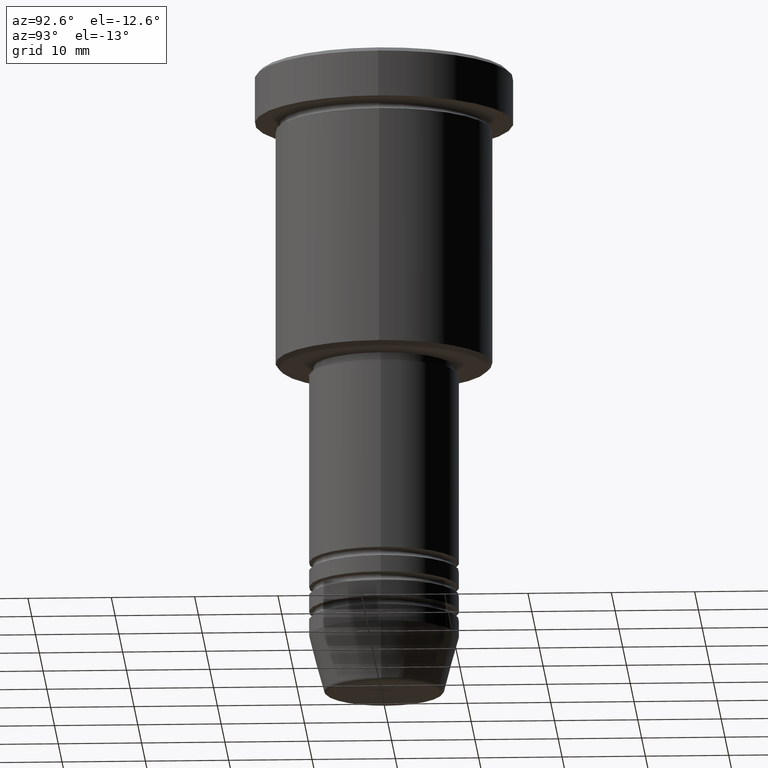
[diagram: clean part render]
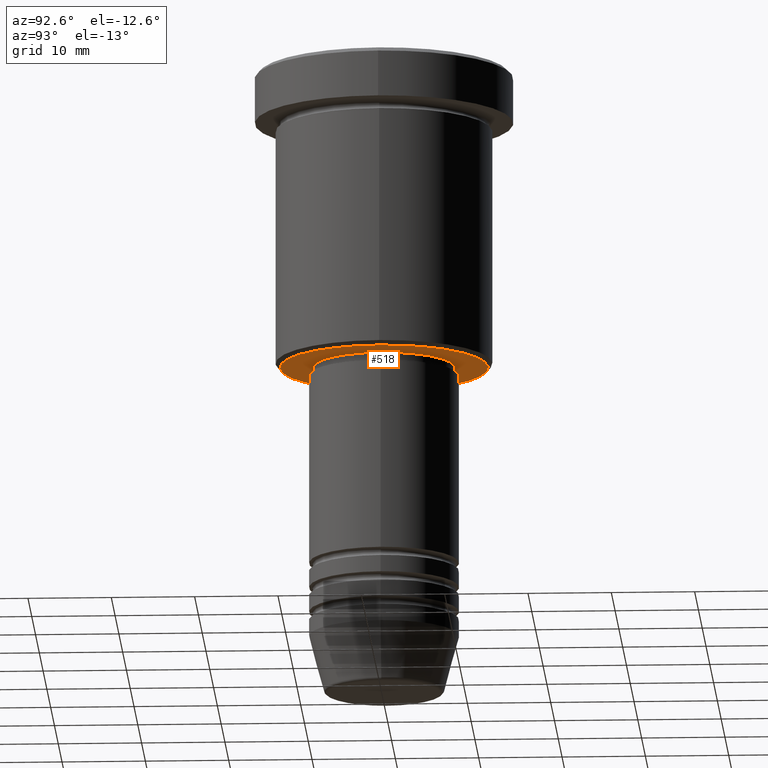
[diagram: same view with one face highlighted and labeled with its STEP entity id]
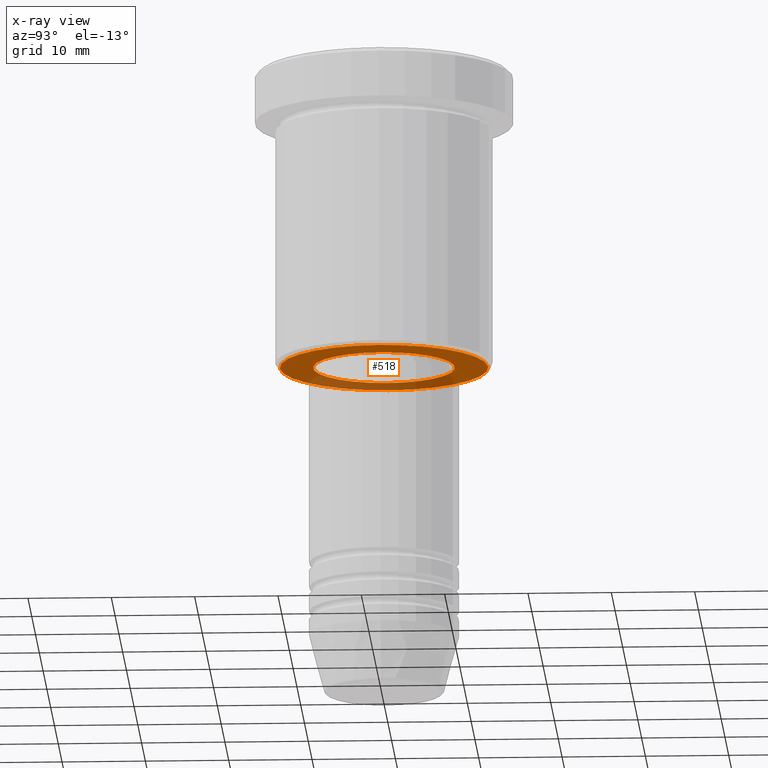
[diagram: x-ray of the same camera — body ghosted, the highlighted face saturated]
A machine part, auxiliary view. The second image highlights one B-rep face of the part: STEP entity #518.
The next image is the same camera in x-ray: the body ghosted, the highlighted face saturated — about 30% of this face is hidden behind the body in this view.
In plain terms, the highlighted planar face has unit normal (0, 0, -1).
Its self-contained STEP definition (entity closure, byte-faithful):
#16 = VERTEX_POINT ( 'NONE', #379 ) ;
#20 = EDGE_CURVE ( 'NONE', #750, #16, #87, .T. ) ;
#22 = DIRECTION ( 'NONE',  ( 0.000000000000000000, 0.000000000000000000, -1.000000000000000000 ) ) ;
#73 = CARTESIAN_POINT ( 'NONE',  ( 12.49999999999999112, 0.000000000000000000, -36.00000000000000711 ) ) ;
#87 = CIRCLE ( 'NONE', #1169, 12.49999999999999112 ) ;
#120 = ORIENTED_EDGE ( 'NONE', *, *, #169, .T. ) ;
#133 = VERTEX_POINT ( 'NONE', #847 ) ;
#169 = EDGE_CURVE ( 'NONE', #432, #133, #302, .T. ) ;
#191 = CARTESIAN_POINT ( 'NONE',  ( 0.000000000000000000, 0.000000000000000000, -36.00000000000000711 ) ) ;
#218 = FACE_BOUND ( 'NONE', #1034, .T. ) ;
#265 = CARTESIAN_POINT ( 'NONE',  ( 0.000000000000000000, 0.000000000000000000, -36.00000000000000711 ) ) ;
#289 = CIRCLE ( 'NONE', #594, 8.499999999999998224 ) ;
#295 = DIRECTION ( 'NONE',  ( -1.000000000000000000, 0.000000000000000000, -0.000000000000000000 ) ) ;
#302 = CIRCLE ( 'NONE', #1021, 8.499999999999998224 ) ;
#353 = DIRECTION ( 'NONE',  ( -1.000000000000000000, 0.000000000000000000, 0.000000000000000000 ) ) ;
#379 = CARTESIAN_POINT ( 'NONE',  ( -12.49999999999999112, 1.561424668912874519E-15, -36.00000000000000711 ) ) ;
#388 = EDGE_LOOP ( 'NONE', ( #892, #409 ) ) ;
#389 = CARTESIAN_POINT ( 'NONE',  ( 8.499999999999998224, 0.000000000000000000, -36.00000000000000711 ) ) ;
#409 = ORIENTED_EDGE ( 'NONE', *, *, #959, .T. ) ;
#432 = VERTEX_POINT ( 'NONE', #389 ) ;
#480 = DIRECTION ( 'NONE',  ( -1.000000000000000000, 0.000000000000000000, 0.000000000000000000 ) ) ;
#518 = ADVANCED_FACE ( 'NONE', ( #1031, #218 ), #843, .T. ) ;
#534 = DIRECTION ( 'NONE',  ( 1.000000000000000000, 0.000000000000000000, 0.000000000000000000 ) ) ;
#552 = CARTESIAN_POINT ( 'NONE',  ( 0.000000000000000000, 0.000000000000000000, -36.00000000000000711 ) ) ;
#556 = DIRECTION ( 'NONE',  ( 0.000000000000000000, 0.000000000000000000, -1.000000000000000000 ) ) ;
#585 = DIRECTION ( 'NONE',  ( 0.000000000000000000, 0.000000000000000000, -1.000000000000000000 ) ) ;
#594 = AXIS2_PLACEMENT_3D ( 'NONE', #552, #634, #1174 ) ;
#634 = DIRECTION ( 'NONE',  ( -0.000000000000000000, -0.000000000000000000, 1.000000000000000000 ) ) ;
#641 = ORIENTED_EDGE ( 'NONE', *, *, #773, .T. ) ;
#750 = VERTEX_POINT ( 'NONE', #73 ) ;
#773 = EDGE_CURVE ( 'NONE', #133, #432, #289, .T. ) ;
#788 = AXIS2_PLACEMENT_3D ( 'NONE', #191, #22, #480 ) ;
#843 = PLANE ( 'NONE',  #1134 ) ;
#847 = CARTESIAN_POINT ( 'NONE',  ( -8.499999999999998224, 1.040949779275249943E-15, -36.00000000000000711 ) ) ;
#892 = ORIENTED_EDGE ( 'NONE', *, *, #20, .T. ) ;
#959 = EDGE_CURVE ( 'NONE', #16, #750, #964, .T. ) ;
#964 = CIRCLE ( 'NONE', #788, 12.49999999999999112 ) ;
#993 = DIRECTION ( 'NONE',  ( -0.000000000000000000, -0.000000000000000000, 1.000000000000000000 ) ) ;
#1021 = AXIS2_PLACEMENT_3D ( 'NONE', #1183, #993, #534 ) ;
#1031 = FACE_OUTER_BOUND ( 'NONE', #388, .T. ) ;
#1034 = EDGE_LOOP ( 'NONE', ( #120, #641 ) ) ;
#1103 = CARTESIAN_POINT ( 'NONE',  ( 0.000000000000000000, 13.00000000000000000, -36.00000000000000711 ) ) ;
#1134 = AXIS2_PLACEMENT_3D ( 'NONE', #1103, #585, #295 ) ;
#1169 = AXIS2_PLACEMENT_3D ( 'NONE', #265, #556, #353 ) ;
#1174 = DIRECTION ( 'NONE',  ( 1.000000000000000000, 0.000000000000000000, 0.000000000000000000 ) ) ;
#1183 = CARTESIAN_POINT ( 'NONE',  ( 0.000000000000000000, 0.000000000000000000, -36.00000000000000711 ) ) ;